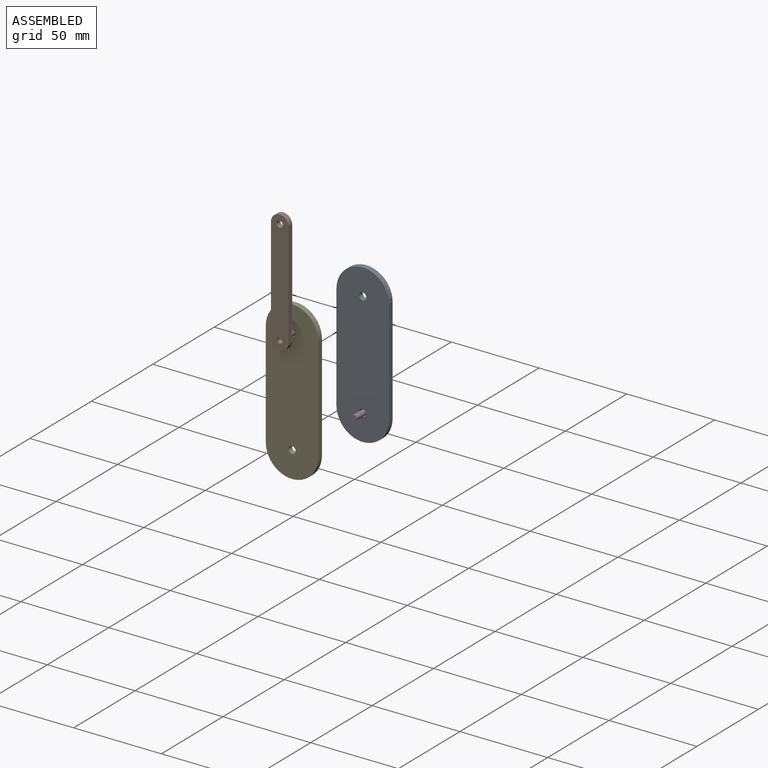
[diagram: assembled view]
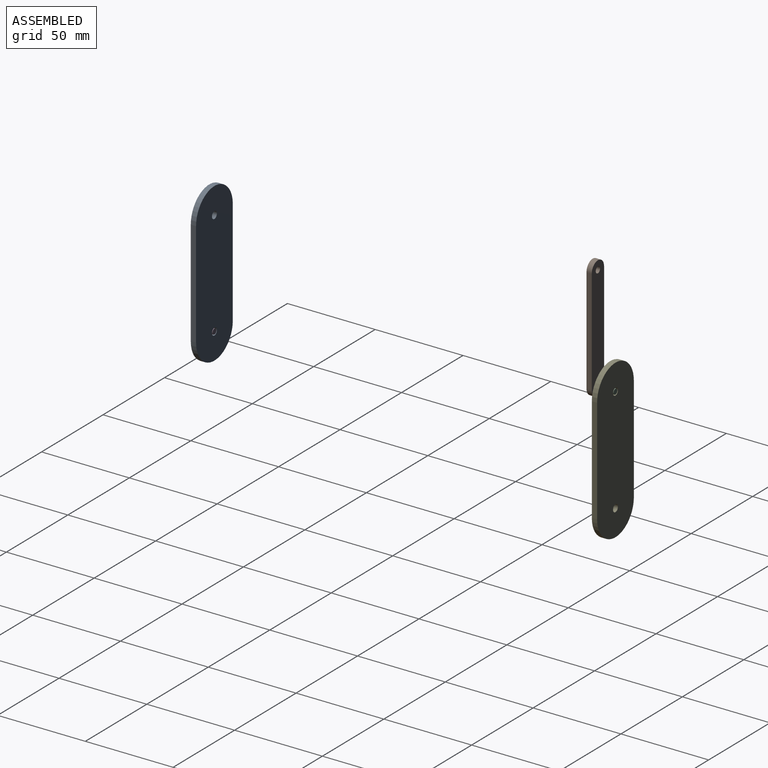
[diagram: assembled view, second angle]
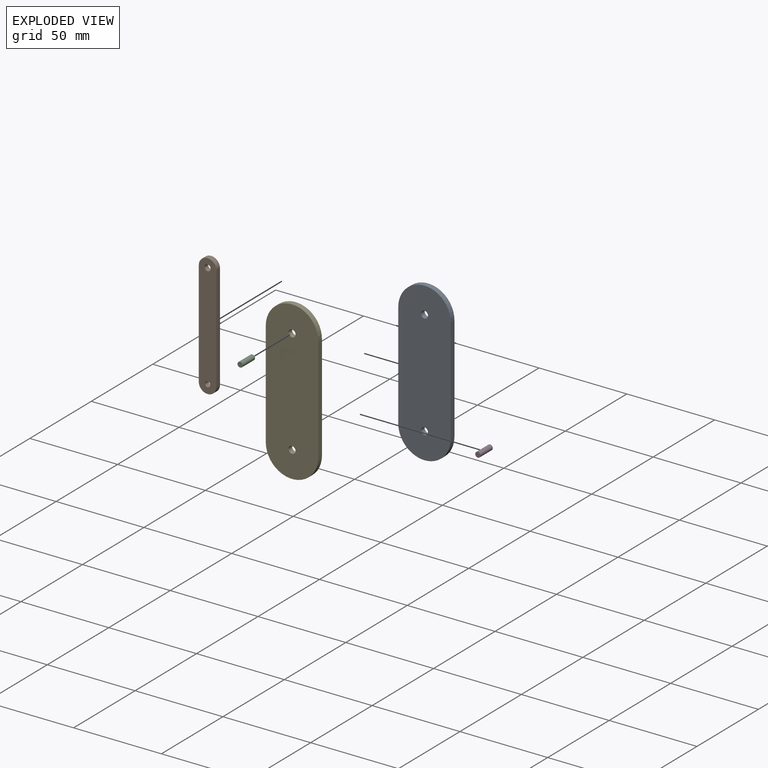
[diagram: exploded view]
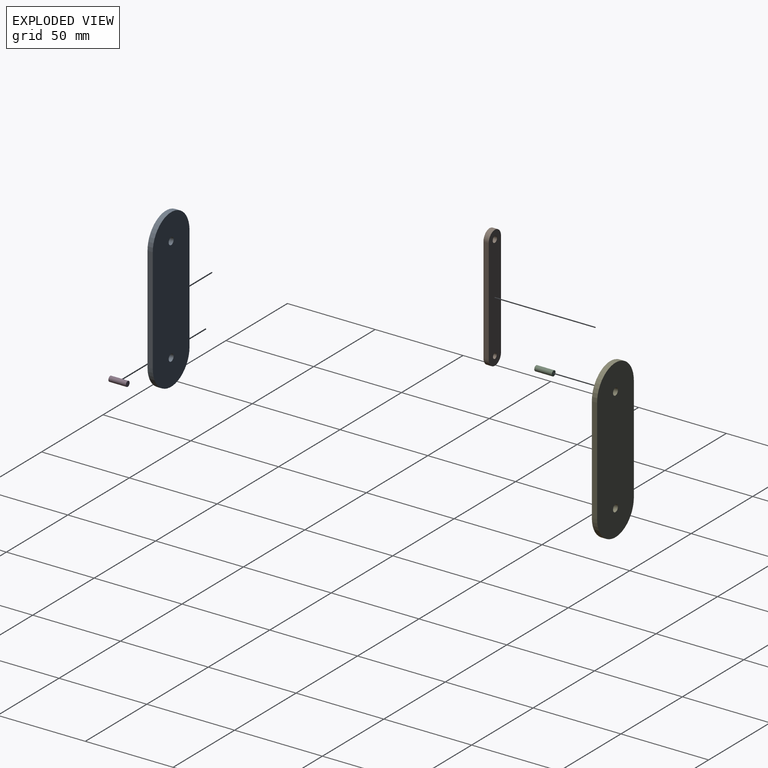
[diagram: exploded view, second angle]
ASSEMBLY  parts=5 mates=2
PART A: 8 faces, bbox 29.9x89.9x3 mm
  f0: plane 89.91x29.91mm, normal (0,0,1), area 2472.1mm2, adj f2,f3,f4,f5,f6,f7
  f1: plane 89.91x29.91mm, normal (0,0,-1), area 2472.1mm2, adj f2,f3,f4,f5,f6,f7
  f2: cylinder r=14.96mm len=29.91mm, axis (0,0,-1), area 140.9mm2, adj f0,f1,f3,f5
  f3: plane 60x3mm, normal (-1,0,0), area 180mm2, adj f0,f1,f2,f4
  f4: cylinder r=14.96mm len=29.91mm, axis (0,0,-1), area 140.9mm2, adj f0,f1,f3,f5
  f5: plane 60x3mm, normal (1,0,0), area 180mm2, adj f0,f1,f2,f4
  f6: cylinder r=2mm len=4mm, axis (0,0,-1), area 37.7mm2, adj f0,f1
  f7: cylinder r=2mm len=4mm, axis (0,0,-1), area 37.7mm2, adj f0,f1
PART B: 8 faces, bbox 10x70x3 mm
  f0: cylinder r=5mm len=10mm, axis (0,0,-1), area 47.1mm2, adj f1,f3,f4,f5
  f1: plane 60x3mm, normal (-1,0,0), area 180mm2, adj f0,f2,f4,f5
  f2: cylinder r=5mm len=10mm, axis (0,0,-1), area 47.1mm2, adj f1,f3,f4,f5
  f3: plane 60x3mm, normal (1,0,0), area 180mm2, adj f0,f2,f4,f5
  f4: plane 70x10mm, normal (0,0,1), area 661.9mm2, adj f0,f1,f2,f3,f6,f7
  f5: plane 70x10mm, normal (0,0,-1), area 661.9mm2, adj f0,f1,f2,f3,f6,f7
  f6: cylinder r=1.75mm len=3.5mm, axis (0,0,-1), area 33mm2, adj f4,f5
  f7: cylinder r=1.5mm len=3mm, axis (0,0,-1), area 28.3mm2, adj f4,f5
PART C: 3 faces, bbox 3x10x3 mm
  f0: cylinder r=1.5mm len=10mm, axis (0,1,0), area 94.2mm2, adj f1,f2
  f1: plane 3x3mm, normal (0,-1,0), area 7.1mm2, adj f0
  f2: plane 3x3mm, normal (0,1,0), area 7.1mm2, adj f0
PART D: same geometry as C
PART E: same geometry as A
PLACE A rot(axis=(-1,0,0),90deg) t=(21.11,-8.56,78.67)mm
PLACE B rot(axis=(-1,0,0),90deg) t=(-123.18,115.81,32.38)mm
PLACE C t=(-118.71,128.81,-3.57)mm
PLACE D rot(axis=(0,-1,0),170deg) t=(15.63,-5.56,42.72)mm
PLACE E rot(axis=(1,0,0),90deg) t=(-113.23,128.81,-39.52)mm
MATE fastened B.f0 <-> C.f0  axis (0,1,0) through (-118.71,118.81,-3.57)mm
MATE revolute E.f2 <-> C.f0  axis (0,1,0) through (-118.71,128.81,-3.57)mm
